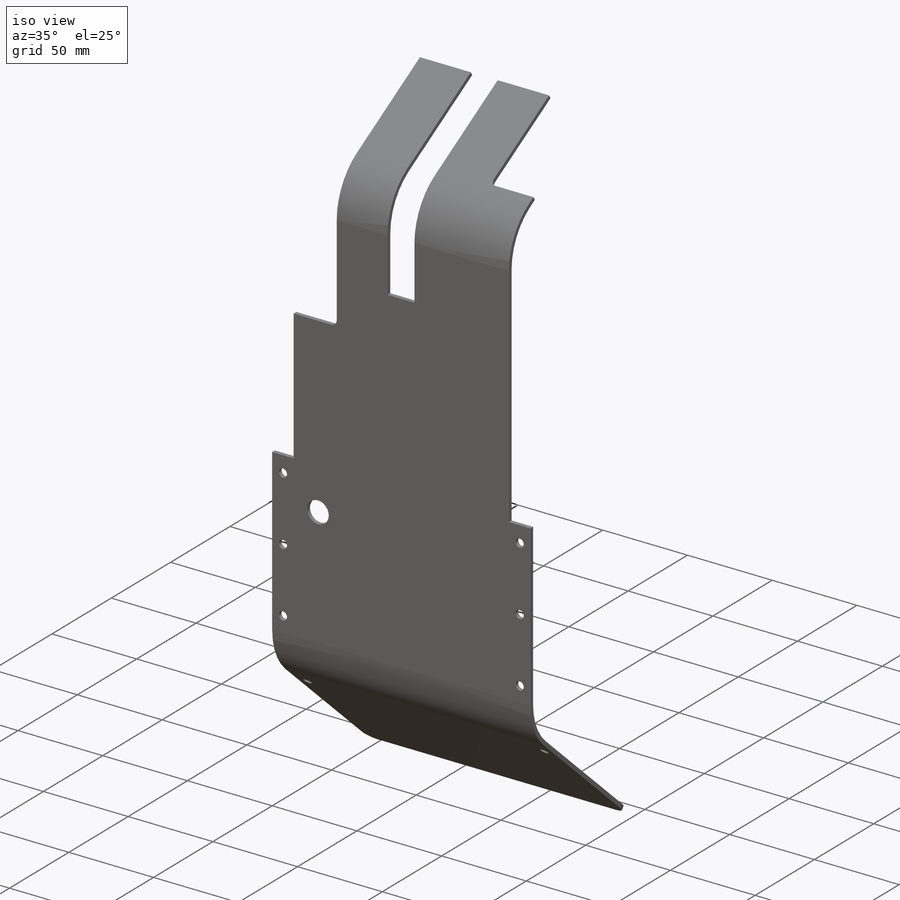
[diagram: iso view]
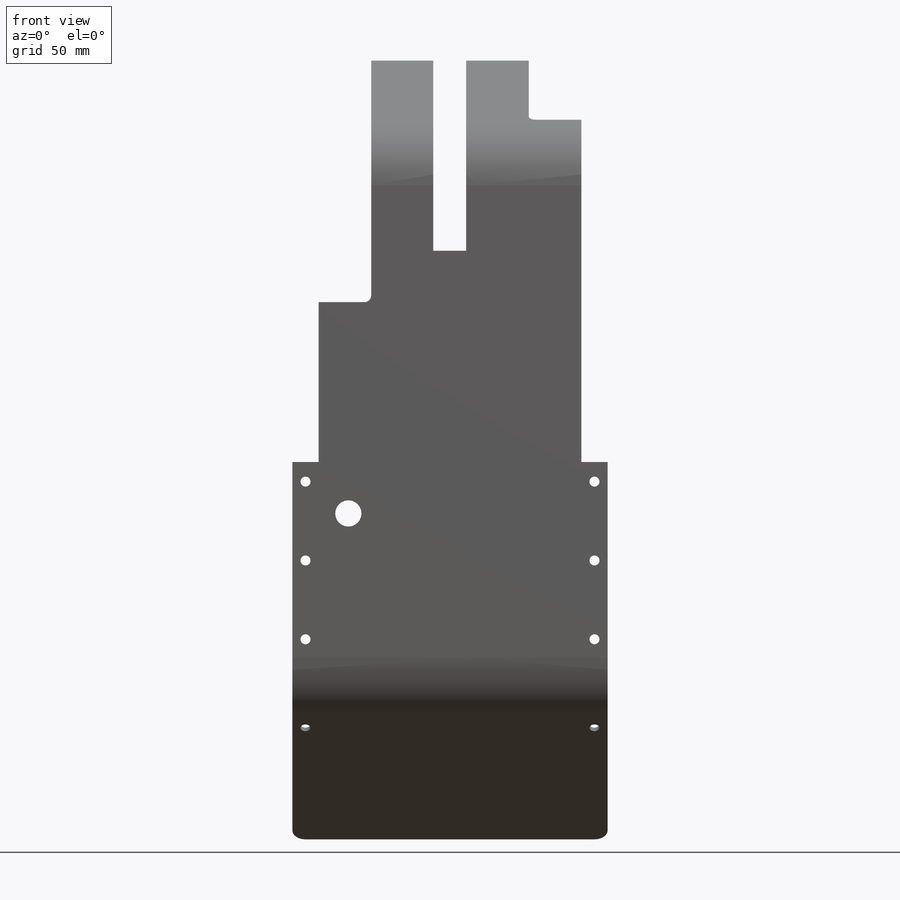
[diagram: front view]
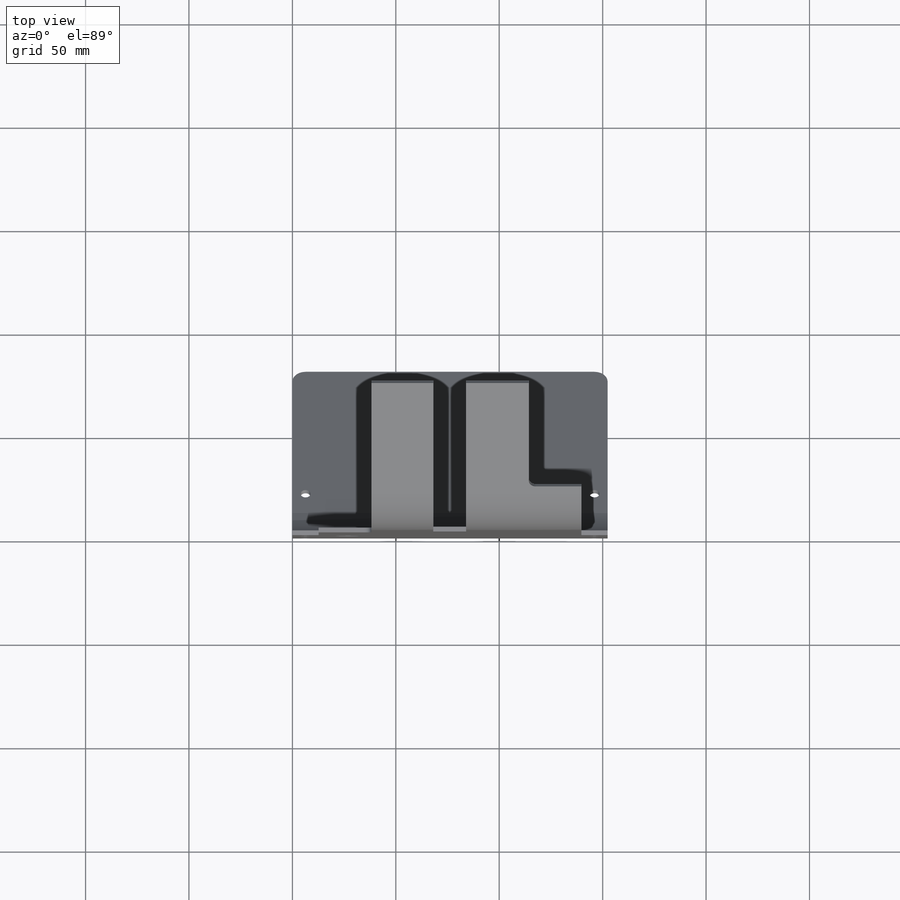
[diagram: top view]
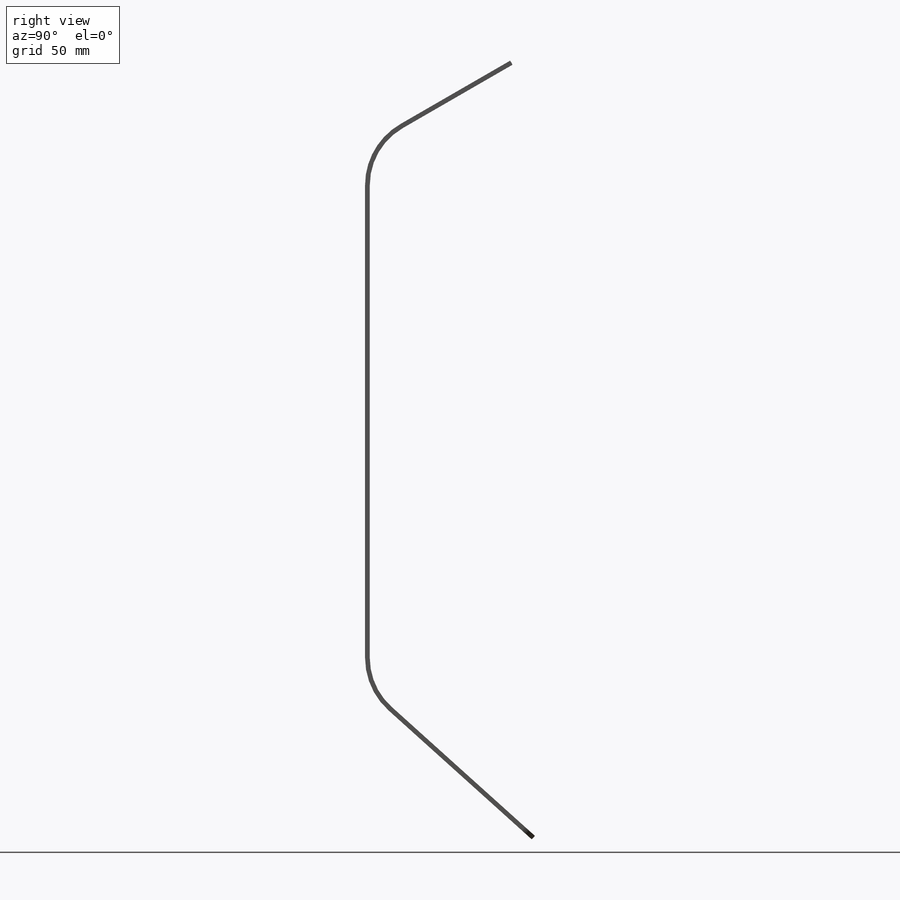
[diagram: right view]
SOLIDWORKS PART (.sldprt)
format: sldprt  version: not decoded by parser v0  size: 510,976 bytes
history: native  units: mm
features: sketch x27, sheet_metal_op x9, cut_extrude x5, fillet x2, material x1 + 8 further entries (+13 scaffold rows collapsed; 10 parser-record rows omitted)
feature tree (75):
  scaffold x13  (default folders/planes/origin — collapsed)
  material  "Ti-6Al-4VSolution treated and aged (SS)"
  sketch  "Sketch1"  dims[c1.D1=94.742mm c1.D2=152.4mm c1.D3=12.7mm c1.D4=12.7mm c1.D5=228.6mm c2.D1=0.8128mm c2.D2=0.5 c2.D3=0.0mm c2.D6=500.0mm]
  sheet_metal_op  "Base-Flange1"
  sketch  "Sketch6"  dims[D1=12.7mm D2=69.85mm D3=27.051mm]
  cut_extrude  "Cut-Extrude1"  [1 undecoded]
  sketch  "Sketch9"  dims[c1.D1=31.75mm c1.D4=48.0deg c1.D5=1.0 c1.D8=1.143mm c1.D9=1.143mm c2.D1=31.75mm c2.D2=500.0mm c2.D3=0.0mm c2.D6=10.0mm c2.D7=108.458mm c2.D8=0.254mm]
  fillet  "Fillet1"  Radius=6.35mm
  sketch  "Sketch14"  dims[c1.D1=31.75mm c1.D4=60.0deg c1.D5=2.0 c1.D8=1.143mm c1.D9=1.143mm c2.D1=31.75mm c2.D2=500.0mm c2.D3=0.0mm c2.D6=10.0mm c2.D7=81.026mm]
  parser-record x10  (decoder bookkeeping rows leaked as tree rows — omitted from the tree; the rows remain in map.json)
  sketch  "Sketch15"  dims[D1=25.4mm D2=25.4mm D3=152.4mm D4=57.15mm]
  cut_extrude  "Cut-Extrude2"  Depth=2.54mm
  sketch  "Sketch15-1"  dims[D1=25.4mm D2=25.4mm D3=152.4mm D4=57.15mm]
  fillet  "Fillet2"  Radius=3.175mm
  sketch  "Sketch16"  dims[D1=15.875mm D2=~68.10375mm D3=203.2mm D4=196.85mm]
  cut_extrude  "Cut-Extrude3"  [1 undecoded]
  sketch  "Sketch17"  dims[c1.D1=~4.719671mm c1.D2=~4.719671mm c1.D3=4.826mm c2.D1=6.35mm c2.D2=9.525mm c2.D4=3.0 c2.D5=2.0]
  cut_extrude  "Cut-Extrude4"  [1 undecoded]
  sketch  "Sketch18"  dims[c1.D1=4.826mm c1.D2=4.826mm c1.D3=4.826mm c1.D4=4.826mm c1.D5=4.826mm c1.D6=4.826mm c2.D3=6.35mm c2.D4=6.35mm c2.D5=12.7mm c2.D6=12.7mm]
  cut_extrude  "Cut-Extrude5"  Depth=2.54mm
  sketch  "Bend-Lines1"
  sketch  "Bounding-Box1"
  sheet_metal_op  "Sheet-Metal1"
  "Flat-Pattern1"
  sketch  "Bend-Lines2"
  sketch  "Bounding-Box2"
  sheet_metal_op  "Sheet-Metal2"
  "Flat-Pattern1"
  sketch  "Bend-Lines2"
  sketch  "Bounding-Box2"
  sheet_metal_op  "Sheet-Metal3"
  "Flat-Pattern1"
  sketch  "Bend-Lines2"
  sketch  "Bounding-Box2"
  sheet_metal_op  "Sheet-Metal4"
  "Flat-Pattern1"
  sketch  "Bend-Lines2"
  sketch  "Bounding-Box2"
  sheet_metal_op  "Sheet-Metal5"
  "Flat-Pattern1"
  sketch  "Bend-Lines2"
  sketch  "Bounding-Box2"
  sheet_metal_op  "Sheet-Metal6"
  "Flat-Pattern1"
  sketch  "Bend-Lines2"
  sketch  "Bounding-Box2"
  sheet_metal_op  "Sheet-Metal7"
  "Flat-Pattern1"
  sketch  "Bend-Lines2"
  sketch  "Bounding-Box2"
  sheet_metal_op  "Sheet-Metal8"
  "Flat-Pattern1"
  sketch  "Bend-Lines2"
  sketch  "Bounding-Box2"
decode coverage: 13 of 43 modeling features carry decoded parameters; 8 rows unclassified (native names shown)
note: ~ marks probable driven/reference dimensions
note: 3 parameter values undecoded
summary: no parameter record found for 3 features
note: suppression state not decoded; provenance and decode notes live in map.json
